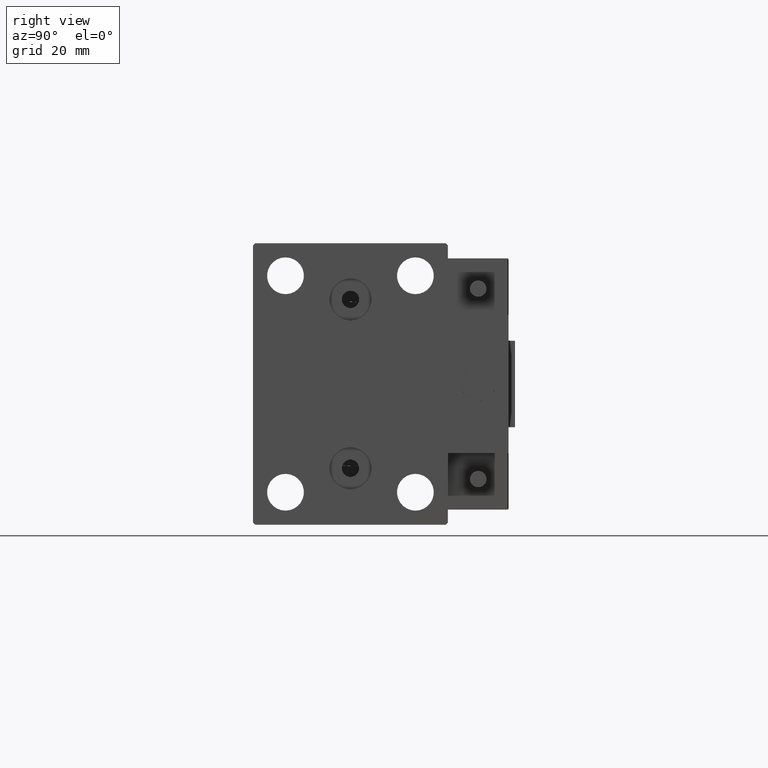
[diagram: clean part render]
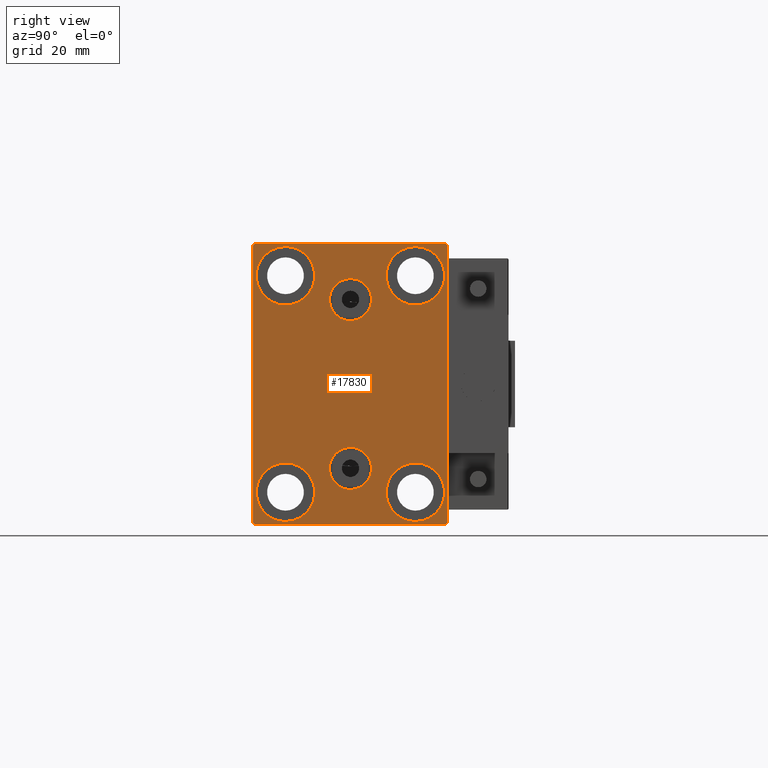
[diagram: same view with one face highlighted and labeled with its STEP entity id]
A machine part, right view. The second image highlights one B-rep face of the part: STEP entity #17830.
In plain terms, the highlighted planar face has unit normal (1, 0, 0).
Its self-contained STEP definition (entity closure, byte-faithful):
#1646 = CARTESIAN_POINT ( 'NONE',  ( 70.00000000000000000, 27.25000000000014921, 27.24999999999976907 ) ) ;
#2160 = DIRECTION ( 'NONE',  ( 1.000000000000000000, 0.000000000000000000, 0.000000000000000000 ) ) ;
#3498 = EDGE_LOOP ( 'NONE', ( #35203, #9834 ) ) ;
#3535 = FACE_BOUND ( 'NONE', #38553, .T. ) ;
#4009 = DIRECTION ( 'NONE',  ( 0.000000000000000000, -0.7071067811865474617, -0.7071067811865474617 ) ) ;
#4707 = CARTESIAN_POINT ( 'NONE',  ( 70.00000000000000000, 14.99999999999999645, -18.25000000000000355 ) ) ;
#5218 = VERTEX_POINT ( 'NONE', #24567 ) ;
#5283 = FACE_OUTER_BOUND ( 'NONE', #34792, .T. ) ;
#5469 = LINE ( 'NONE', #1646, #7090 ) ;
#5495 = VECTOR ( 'NONE', #4009, 1000.000000000000114 ) ;
#5732 = EDGE_CURVE ( 'NONE', #9139, #43570, #37689, .T. ) ;
#5993 = DIRECTION ( 'NONE',  ( 0.000000000000000000, 0.000000000000000000, 1.000000000000000000 ) ) ;
#6132 = ORIENTED_EDGE ( 'NONE', *, *, #29878, .T. ) ;
#6239 = DIRECTION ( 'NONE',  ( 0.000000000000000000, 0.000000000000000000, -1.000000000000000000 ) ) ;
#6243 = DIRECTION ( 'NONE',  ( -1.000000000000000000, -0.000000000000000000, -0.000000000000000000 ) ) ;
#6404 = EDGE_LOOP ( 'NONE', ( #25140, #6132 ) ) ;
#6645 = ORIENTED_EDGE ( 'NONE', *, *, #35794, .T. ) ;
#7090 = VECTOR ( 'NONE', #33106, 999.9999999999998863 ) ;
#7093 = FACE_BOUND ( 'NONE', #32026, .T. ) ;
#7095 = AXIS2_PLACEMENT_3D ( 'NONE', #17405, #6243, #5993 ) ;
#7428 = CARTESIAN_POINT ( 'NONE',  ( 70.00000000000000000, -14.99999999999999645, 31.75000000000000000 ) ) ;
#7717 = DIRECTION ( 'NONE',  ( -1.000000000000000000, -0.000000000000000000, -0.000000000000000000 ) ) ;
#8105 = VERTEX_POINT ( 'NONE', #24521 ) ;
#8218 = CARTESIAN_POINT ( 'NONE',  ( 70.00000000000000000, 22.49999999999999289, 32.50000000000000000 ) ) ;
#8799 = DIRECTION ( 'NONE',  ( 0.000000000000000000, 1.000000000000000000, 0.000000000000000000 ) ) ;
#8871 = LINE ( 'NONE', #43100, #8995 ) ;
#8917 = AXIS2_PLACEMENT_3D ( 'NONE', #39407, #12790, #43202 ) ;
#8995 = VECTOR ( 'NONE', #20282, 1000.000000000000000 ) ;
#9139 = VERTEX_POINT ( 'NONE', #47318 ) ;
#9715 = CARTESIAN_POINT ( 'NONE',  ( 70.00000000000000000, -15.00000000000000355, -25.00000000000000000 ) ) ;
#9834 = ORIENTED_EDGE ( 'NONE', *, *, #36432, .T. ) ;
#10306 = CIRCLE ( 'NONE', #15163, 6.749999999999999112 ) ;
#11272 = DIRECTION ( 'NONE',  ( 0.000000000000000000, 0.000000000000000000, 1.000000000000000000 ) ) ;
#11396 = VECTOR ( 'NONE', #8799, 1000.000000000000000 ) ;
#11561 = ORIENTED_EDGE ( 'NONE', *, *, #30851, .T. ) ;
#11745 = VERTEX_POINT ( 'NONE', #32210 ) ;
#11930 = EDGE_CURVE ( 'NONE', #27398, #49033, #37775, .T. ) ;
#11984 = CIRCLE ( 'NONE', #29010, 4.859999999999999432 ) ;
#12402 = DIRECTION ( 'NONE',  ( 1.000000000000000000, 0.000000000000000000, 0.000000000000000000 ) ) ;
#12443 = ORIENTED_EDGE ( 'NONE', *, *, #36361, .F. ) ;
#12790 = DIRECTION ( 'NONE',  ( 1.000000000000000000, 0.000000000000000000, -0.000000000000000000 ) ) ;
#12904 = CARTESIAN_POINT ( 'NONE',  ( 70.00000000000000000, 22.00000000000001421, -32.50000000000000711 ) ) ;
#13008 = EDGE_CURVE ( 'NONE', #43570, #9139, #10306, .T. ) ;
#13831 = ORIENTED_EDGE ( 'NONE', *, *, #17082, .T. ) ;
#13865 = DIRECTION ( 'NONE',  ( 0.000000000000000000, 0.000000000000000000, -1.000000000000000000 ) ) ;
#14373 = AXIS2_PLACEMENT_3D ( 'NONE', #25771, #25032, #13865 ) ;
#14604 = ORIENTED_EDGE ( 'NONE', *, *, #32881, .T. ) ;
#15008 = ORIENTED_EDGE ( 'NONE', *, *, #29229, .F. ) ;
#15163 = AXIS2_PLACEMENT_3D ( 'NONE', #22496, #42513, #50121 ) ;
#15423 = EDGE_CURVE ( 'NONE', #21452, #18432, #19726, .T. ) ;
#15583 = CIRCLE ( 'NONE', #43901, 4.859999999999999432 ) ;
#15601 = CARTESIAN_POINT ( 'NONE',  ( 70.00000000000000000, -15.00000000000000355, -25.00000000000000000 ) ) ;
#16334 = VERTEX_POINT ( 'NONE', #36071 ) ;
#16446 = ORIENTED_EDGE ( 'NONE', *, *, #24349, .T. ) ;
#16734 = EDGE_CURVE ( 'NONE', #18432, #32346, #18435, .T. ) ;
#16915 = CARTESIAN_POINT ( 'NONE',  ( 70.00000000000000000, 15.00000000000000355, 25.00000000000000000 ) ) ;
#17035 = CIRCLE ( 'NONE', #38102, 6.749999999999999112 ) ;
#17082 = EDGE_CURVE ( 'NONE', #32346, #18039, #28625, .T. ) ;
#17405 = CARTESIAN_POINT ( 'NONE',  ( 70.00000000000000000, -14.99999999999999645, 25.00000000000000000 ) ) ;
#17830 = ADVANCED_FACE ( 'NONE', ( #7093, #22556, #38022, #18764, #38278, #3535, #5283 ), #23809, .T. ) ;
#18039 = VERTEX_POINT ( 'NONE', #45057 ) ;
#18432 = VERTEX_POINT ( 'NONE', #24445 ) ;
#18435 = LINE ( 'NONE', #38198, #29038 ) ;
#18764 = FACE_BOUND ( 'NONE', #3498, .T. ) ;
#18888 = DIRECTION ( 'NONE',  ( 0.000000000000000000, 0.000000000000000000, 1.000000000000000000 ) ) ;
#19220 = CIRCLE ( 'NONE', #14373, 4.859999999999999432 ) ;
#19415 = CARTESIAN_POINT ( 'NONE',  ( 70.00000000000000000, 27.25000000000032685, -27.24999999999957012 ) ) ;
#19550 = VERTEX_POINT ( 'NONE', #45933 ) ;
#19726 = LINE ( 'NONE', #24036, #5495 ) ;
#19908 = CARTESIAN_POINT ( 'NONE',  ( 70.00000000000000000, -3.571693674697836683E-15, 14.64000000000000412 ) ) ;
#20282 = DIRECTION ( 'NONE',  ( 0.000000000000000000, -1.067522139062650425E-16, 1.000000000000000000 ) ) ;
#20703 = VERTEX_POINT ( 'NONE', #39070 ) ;
#20804 = ORIENTED_EDGE ( 'NONE', *, *, #23792, .F. ) ;
#20957 = DIRECTION ( 'NONE',  ( -1.000000000000000000, -0.000000000000000000, -0.000000000000000000 ) ) ;
#21225 = AXIS2_PLACEMENT_3D ( 'NONE', #16915, #20957, #44022 ) ;
#21401 = VERTEX_POINT ( 'NONE', #32486 ) ;
#21452 = VERTEX_POINT ( 'NONE', #33493 ) ;
#21453 = CARTESIAN_POINT ( 'NONE',  ( 70.00000000000000000, -3.571693674697836683E-15, 19.50000000000000355 ) ) ;
#22307 = AXIS2_PLACEMENT_3D ( 'NONE', #22939, #7717, #18888 ) ;
#22496 = CARTESIAN_POINT ( 'NONE',  ( 70.00000000000000000, 14.99999999999999645, -25.00000000000000000 ) ) ;
#22556 = FACE_BOUND ( 'NONE', #48407, .T. ) ;
#22574 = VECTOR ( 'NONE', #48107, 1000.000000000000000 ) ;
#22939 = CARTESIAN_POINT ( 'NONE',  ( 70.00000000000000000, 14.99999999999999645, -25.00000000000000000 ) ) ;
#23165 = ORIENTED_EDGE ( 'NONE', *, *, #16734, .T. ) ;
#23792 = EDGE_CURVE ( 'NONE', #20703, #21401, #30810, .T. ) ;
#23809 = PLANE ( 'NONE',  #27481 ) ;
#23906 = VERTEX_POINT ( 'NONE', #34564 ) ;
#24036 = CARTESIAN_POINT ( 'NONE',  ( 70.00000000000000000, -27.25000000000000000, 27.25000000000000000 ) ) ;
#24040 = VECTOR ( 'NONE', #43427, 1000.000000000000000 ) ;
#24349 = EDGE_CURVE ( 'NONE', #18039, #44608, #43034, .T. ) ;
#24445 = CARTESIAN_POINT ( 'NONE',  ( 70.00000000000000000, -22.50000000000000711, 31.99999999999999289 ) ) ;
#24521 = CARTESIAN_POINT ( 'NONE',  ( 70.00000000000000000, 21.99999999999999289, 32.50000000000000000 ) ) ;
#24567 = CARTESIAN_POINT ( 'NONE',  ( 70.00000000000000000, -15.00000000000000355, -18.25000000000000355 ) ) ;
#24571 = CARTESIAN_POINT ( 'NONE',  ( 70.00000000000000000, 0.000000000000000000, 0.000000000000000000 ) ) ;
#25032 = DIRECTION ( 'NONE',  ( 1.000000000000000000, 0.000000000000000000, 0.000000000000000000 ) ) ;
#25059 = AXIS2_PLACEMENT_3D ( 'NONE', #46974, #34843, #11272 ) ;
#25140 = ORIENTED_EDGE ( 'NONE', *, *, #11930, .T. ) ;
#25771 = CARTESIAN_POINT ( 'NONE',  ( 70.00000000000000000, -3.571693674697836683E-15, 19.50000000000000355 ) ) ;
#26530 = CARTESIAN_POINT ( 'NONE',  ( 70.00000000000000000, 22.49999999999999289, 31.99999999999999289 ) ) ;
#26548 = CIRCLE ( 'NONE', #7095, 6.749999999999999112 ) ;
#26640 = ORIENTED_EDGE ( 'NONE', *, *, #37299, .F. ) ;
#26963 = AXIS2_PLACEMENT_3D ( 'NONE', #15601, #31321, #35117 ) ;
#27398 = VERTEX_POINT ( 'NONE', #46746 ) ;
#27405 = DIRECTION ( 'NONE',  ( 0.000000000000000000, 0.000000000000000000, 1.000000000000000000 ) ) ;
#27481 = AXIS2_PLACEMENT_3D ( 'NONE', #24571, #12402, #46860 ) ;
#27549 = LINE ( 'NONE', #19415, #47223 ) ;
#27621 = DIRECTION ( 'NONE',  ( 0.000000000000000000, 0.000000000000000000, 1.000000000000000000 ) ) ;
#28000 = LINE ( 'NONE', #8218, #24040 ) ;
#28097 = CARTESIAN_POINT ( 'NONE',  ( 70.00000000000000000, -22.50000000000000711, -32.50000000000000711 ) ) ;
#28625 = LINE ( 'NONE', #37209, #22574 ) ;
#29010 = AXIS2_PLACEMENT_3D ( 'NONE', #46883, #39537, #27405 ) ;
#29038 = VECTOR ( 'NONE', #30364, 1000.000000000000000 ) ;
#29229 = EDGE_CURVE ( 'NONE', #23906, #32980, #15583, .T. ) ;
#29480 = CARTESIAN_POINT ( 'NONE',  ( 70.00000000000000000, 15.00000000000000355, 31.75000000000000000 ) ) ;
#29878 = EDGE_CURVE ( 'NONE', #49033, #27398, #43077, .T. ) ;
#29982 = VERTEX_POINT ( 'NONE', #26530 ) ;
#30364 = DIRECTION ( 'NONE',  ( 0.000000000000000000, 0.000000000000000000, -1.000000000000000000 ) ) ;
#30810 = CIRCLE ( 'NONE', #8917, 4.859999999999999432 ) ;
#30851 = EDGE_CURVE ( 'NONE', #16334, #5218, #35053, .T. ) ;
#30955 = ORIENTED_EDGE ( 'NONE', *, *, #46874, .T. ) ;
#31321 = DIRECTION ( 'NONE',  ( -1.000000000000000000, -0.000000000000000000, -0.000000000000000000 ) ) ;
#32026 = EDGE_LOOP ( 'NONE', ( #12443, #15008 ) ) ;
#32210 = CARTESIAN_POINT ( 'NONE',  ( 70.00000000000000000, 22.50000000000000000, -32.00000000000002132 ) ) ;
#32346 = VERTEX_POINT ( 'NONE', #43094 ) ;
#32486 = CARTESIAN_POINT ( 'NONE',  ( 70.00000000000000000, 2.388061258337338150E-15, -24.35999999999999588 ) ) ;
#32881 = EDGE_CURVE ( 'NONE', #44608, #11745, #27549, .T. ) ;
#32980 = VERTEX_POINT ( 'NONE', #19908 ) ;
#33106 = DIRECTION ( 'NONE',  ( -0.000000000000000000, -0.7071067811865425767, 0.7071067811865525687 ) ) ;
#33493 = CARTESIAN_POINT ( 'NONE',  ( 70.00000000000000000, -21.99999999999999289, 32.49999999999999289 ) ) ;
#34564 = CARTESIAN_POINT ( 'NONE',  ( 70.00000000000000000, -2.976515330312223406E-15, 24.36000000000000298 ) ) ;
#34792 = EDGE_LOOP ( 'NONE', ( #6645, #45876, #23165, #13831, #16446, #14604, #36631, #47781 ) ) ;
#34843 = DIRECTION ( 'NONE',  ( -1.000000000000000000, -0.000000000000000000, -0.000000000000000000 ) ) ;
#35053 = CIRCLE ( 'NONE', #26963, 6.749999999999999112 ) ;
#35117 = DIRECTION ( 'NONE',  ( 0.000000000000000000, 0.000000000000000000, 1.000000000000000000 ) ) ;
#35203 = ORIENTED_EDGE ( 'NONE', *, *, #43801, .T. ) ;
#35210 = DIRECTION ( 'NONE',  ( -1.000000000000000000, -0.000000000000000000, -0.000000000000000000 ) ) ;
#35794 = EDGE_CURVE ( 'NONE', #8105, #21452, #28000, .T. ) ;
#36071 = CARTESIAN_POINT ( 'NONE',  ( 70.00000000000000000, -15.00000000000000355, -31.75000000000000000 ) ) ;
#36361 = EDGE_CURVE ( 'NONE', #32980, #23906, #19220, .T. ) ;
#36432 = EDGE_CURVE ( 'NONE', #36933, #19550, #26548, .T. ) ;
#36631 = ORIENTED_EDGE ( 'NONE', *, *, #49278, .T. ) ;
#36832 = DIRECTION ( 'NONE',  ( -1.000000000000000000, -0.000000000000000000, -0.000000000000000000 ) ) ;
#36933 = VERTEX_POINT ( 'NONE', #7428 ) ;
#37209 = CARTESIAN_POINT ( 'NONE',  ( 70.00000000000000000, -27.25000000000032330, -27.24999999999957012 ) ) ;
#37299 = EDGE_CURVE ( 'NONE', #21401, #20703, #11984, .T. ) ;
#37333 = DIRECTION ( 'NONE',  ( 0.000000000000000000, 0.000000000000000000, 1.000000000000000000 ) ) ;
#37547 = EDGE_LOOP ( 'NONE', ( #49902, #46660 ) ) ;
#37689 = CIRCLE ( 'NONE', #22307, 6.749999999999999112 ) ;
#37775 = CIRCLE ( 'NONE', #49936, 6.749999999999999112 ) ;
#38022 = FACE_BOUND ( 'NONE', #37547, .T. ) ;
#38102 = AXIS2_PLACEMENT_3D ( 'NONE', #9715, #36832, #37333 ) ;
#38198 = CARTESIAN_POINT ( 'NONE',  ( 70.00000000000000000, -22.50000000000000711, 32.49999999999999289 ) ) ;
#38278 = FACE_BOUND ( 'NONE', #6404, .T. ) ;
#38553 = EDGE_LOOP ( 'NONE', ( #11561, #30955 ) ) ;
#39070 = CARTESIAN_POINT ( 'NONE',  ( 70.00000000000000000, 2.983239602722951428E-15, -14.63999999999999702 ) ) ;
#39407 = CARTESIAN_POINT ( 'NONE',  ( 70.00000000000000000, 2.388061258337338150E-15, -19.49999999999999645 ) ) ;
#39537 = DIRECTION ( 'NONE',  ( 1.000000000000000000, 0.000000000000000000, -0.000000000000000000 ) ) ;
#41064 = EDGE_CURVE ( 'NONE', #29982, #8105, #5469, .T. ) ;
#41213 = CIRCLE ( 'NONE', #25059, 6.749999999999999112 ) ;
#42513 = DIRECTION ( 'NONE',  ( -1.000000000000000000, -0.000000000000000000, -0.000000000000000000 ) ) ;
#43034 = LINE ( 'NONE', #28097, #11396 ) ;
#43077 = CIRCLE ( 'NONE', #21225, 6.749999999999999112 ) ;
#43094 = CARTESIAN_POINT ( 'NONE',  ( 70.00000000000000000, -22.50000000000000711, -32.00000000000000711 ) ) ;
#43100 = CARTESIAN_POINT ( 'NONE',  ( 70.00000000000000000, 22.50000000000000000, -32.50000000000000711 ) ) ;
#43202 = DIRECTION ( 'NONE',  ( 0.000000000000000000, 0.000000000000000000, 1.000000000000000000 ) ) ;
#43427 = DIRECTION ( 'NONE',  ( 0.000000000000000000, -1.000000000000000000, -1.541976423090495387E-16 ) ) ;
#43570 = VERTEX_POINT ( 'NONE', #4707 ) ;
#43801 = EDGE_CURVE ( 'NONE', #19550, #36933, #41213, .T. ) ;
#43901 = AXIS2_PLACEMENT_3D ( 'NONE', #21453, #2160, #6239 ) ;
#44022 = DIRECTION ( 'NONE',  ( 0.000000000000000000, 0.000000000000000000, 1.000000000000000000 ) ) ;
#44608 = VERTEX_POINT ( 'NONE', #12904 ) ;
#45057 = CARTESIAN_POINT ( 'NONE',  ( 70.00000000000000000, -22.00000000000002132, -32.50000000000000711 ) ) ;
#45876 = ORIENTED_EDGE ( 'NONE', *, *, #15423, .T. ) ;
#45933 = CARTESIAN_POINT ( 'NONE',  ( 70.00000000000000000, -14.99999999999999645, 18.25000000000000355 ) ) ;
#46358 = CARTESIAN_POINT ( 'NONE',  ( 70.00000000000000000, 15.00000000000000355, 25.00000000000000000 ) ) ;
#46528 = DIRECTION ( 'NONE',  ( -0.000000000000000000, 0.7071067811865376918, 0.7071067811865573427 ) ) ;
#46660 = ORIENTED_EDGE ( 'NONE', *, *, #13008, .T. ) ;
#46746 = CARTESIAN_POINT ( 'NONE',  ( 70.00000000000000000, 15.00000000000000355, 18.25000000000000355 ) ) ;
#46860 = DIRECTION ( 'NONE',  ( 0.000000000000000000, 0.000000000000000000, -1.000000000000000000 ) ) ;
#46874 = EDGE_CURVE ( 'NONE', #5218, #16334, #17035, .T. ) ;
#46883 = CARTESIAN_POINT ( 'NONE',  ( 70.00000000000000000, 2.388061258337338150E-15, -19.49999999999999645 ) ) ;
#46974 = CARTESIAN_POINT ( 'NONE',  ( 70.00000000000000000, -14.99999999999999645, 25.00000000000000000 ) ) ;
#47223 = VECTOR ( 'NONE', #46528, 1000.000000000000114 ) ;
#47318 = CARTESIAN_POINT ( 'NONE',  ( 70.00000000000000000, 14.99999999999999645, -31.75000000000000000 ) ) ;
#47781 = ORIENTED_EDGE ( 'NONE', *, *, #41064, .T. ) ;
#48107 = DIRECTION ( 'NONE',  ( -0.000000000000000000, 0.7071067811865378028, -0.7071067811865573427 ) ) ;
#48407 = EDGE_LOOP ( 'NONE', ( #26640, #20804 ) ) ;
#49033 = VERTEX_POINT ( 'NONE', #29480 ) ;
#49278 = EDGE_CURVE ( 'NONE', #11745, #29982, #8871, .T. ) ;
#49902 = ORIENTED_EDGE ( 'NONE', *, *, #5732, .T. ) ;
#49936 = AXIS2_PLACEMENT_3D ( 'NONE', #46358, #35210, #27621 ) ;
#50121 = DIRECTION ( 'NONE',  ( 0.000000000000000000, 0.000000000000000000, 1.000000000000000000 ) ) ;